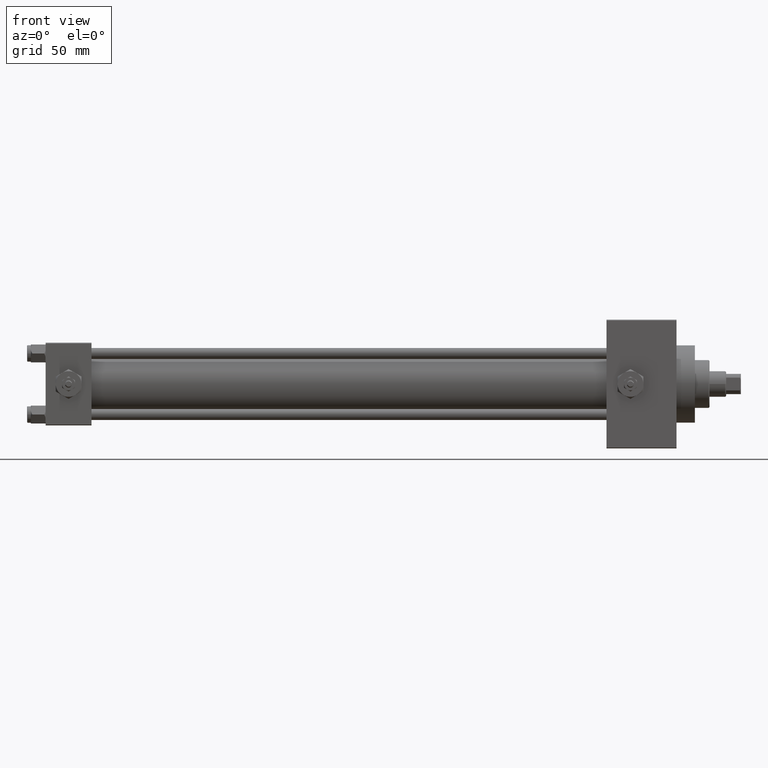
[diagram: clean part render]
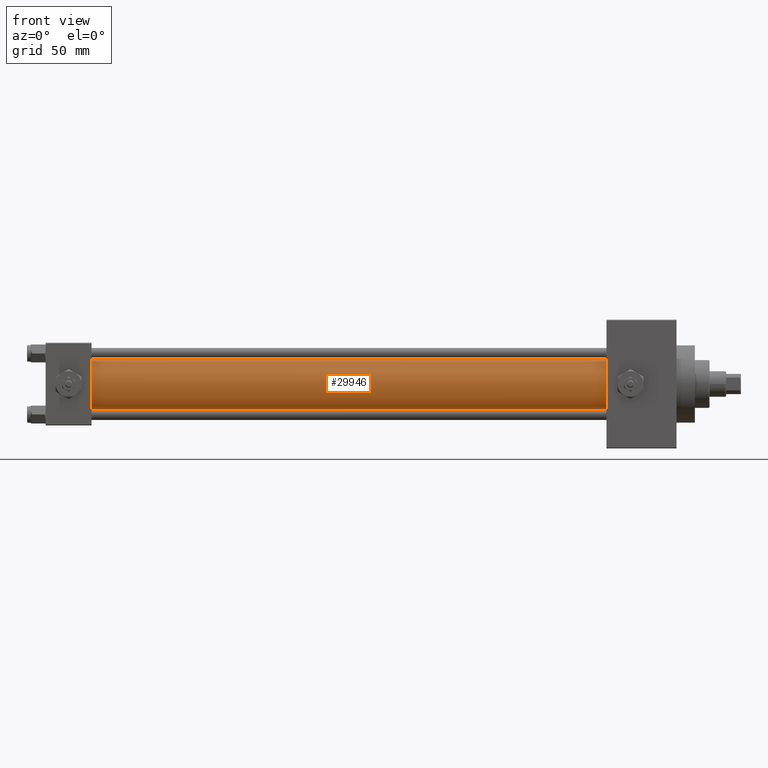
[diagram: same view with one face highlighted and labeled with its STEP entity id]
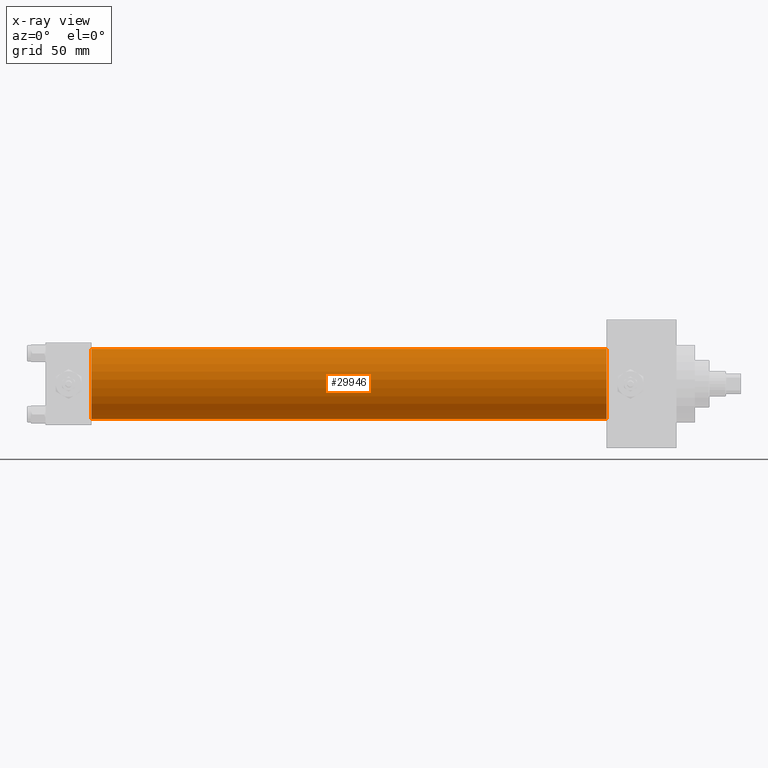
[diagram: x-ray of the same camera — body ghosted, the highlighted face saturated]
A machine part, front view. The second image highlights one B-rep face of the part: STEP entity #29946.
The next image is the same camera in x-ray: the body ghosted, the highlighted face saturated — about 0% of this face is hidden behind the body in this view.
In plain terms, the highlighted cylindrical surface (edge-blend (fillet) strip) has radius 19 mm, axis along (-1, -0, -0).
Its self-contained STEP definition (entity closure, byte-faithful):
#4764 = CARTESIAN_POINT ( 'NONE',  ( 305.0000000000000568, -2.602085213965210642E-15, 19.00000000000000000 ) ) ;
#5509 = VERTEX_POINT ( 'NONE', #35450 ) ;
#6197 = ORIENTED_EDGE ( 'NONE', *, *, #16673, .T. ) ;
#12384 = EDGE_CURVE ( 'NONE', #5509, #27821, #44966, .T. ) ;
#12551 = DIRECTION ( 'NONE',  ( -1.000000000000000000, -0.000000000000000000, -0.000000000000000000 ) ) ;
#12676 = CARTESIAN_POINT ( 'NONE',  ( 305.0000000000000568, -2.752562955852396712E-16, -19.00000000000000000 ) ) ;
#12865 = ORIENTED_EDGE ( 'NONE', *, *, #39129, .T. ) ;
#14685 = DIRECTION ( 'NONE',  ( 0.000000000000000000, 0.000000000000000000, 1.000000000000000000 ) ) ;
#16673 = EDGE_CURVE ( 'NONE', #28945, #27062, #26922, .T. ) ;
#17181 = DIRECTION ( 'NONE',  ( -1.000000000000000000, -0.000000000000000000, -0.000000000000000000 ) ) ;
#17927 = DIRECTION ( 'NONE',  ( 1.000000000000000000, -0.000000000000000000, 0.000000000000000000 ) ) ;
#18587 = EDGE_CURVE ( 'NONE', #27821, #27062, #41250, .T. ) ;
#18963 = ORIENTED_EDGE ( 'NONE', *, *, #18587, .F. ) ;
#20167 = CARTESIAN_POINT ( 'NONE',  ( 305.0000000000000568, -2.602085213965210642E-15, 0.000000000000000000 ) ) ;
#20924 = CYLINDRICAL_SURFACE ( 'NONE', #28034, 19.00000000000000000 ) ;
#21180 = AXIS2_PLACEMENT_3D ( 'NONE', #20167, #43338, #27629 ) ;
#21218 = EDGE_LOOP ( 'NONE', ( #18963, #38996, #12865, #6197 ) ) ;
#22304 = CARTESIAN_POINT ( 'NONE',  ( 305.0000000000000568, -2.752562955852396712E-16, -19.00000000000000000 ) ) ;
#23694 = DIRECTION ( 'NONE',  ( -1.000000000000000000, -0.000000000000000000, -0.000000000000000000 ) ) ;
#26922 = CIRCLE ( 'NONE', #31704, 19.00000000000000000 ) ;
#27062 = VERTEX_POINT ( 'NONE', #29028 ) ;
#27629 = DIRECTION ( 'NONE',  ( 0.000000000000000000, 0.000000000000000000, -1.000000000000000000 ) ) ;
#27821 = VERTEX_POINT ( 'NONE', #12676 ) ;
#28034 = AXIS2_PLACEMENT_3D ( 'NONE', #42884, #17181, #35879 ) ;
#28945 = VERTEX_POINT ( 'NONE', #46060 ) ;
#29028 = CARTESIAN_POINT ( 'NONE',  ( 25.00000000000002132, -2.752562955852396712E-16, -19.00000000000000000 ) ) ;
#29946 = ADVANCED_FACE ( 'NONE', ( #46879 ), #20924, .T. ) ;
#30631 = VECTOR ( 'NONE', #23694, 1000.000000000000000 ) ;
#31704 = AXIS2_PLACEMENT_3D ( 'NONE', #43368, #17927, #14685 ) ;
#35450 = CARTESIAN_POINT ( 'NONE',  ( 305.0000000000000568, -2.602085213965210642E-15, 19.00000000000000000 ) ) ;
#35879 = DIRECTION ( 'NONE',  ( 0.000000000000000000, 0.000000000000000000, 1.000000000000000000 ) ) ;
#38996 = ORIENTED_EDGE ( 'NONE', *, *, #12384, .F. ) ;
#39129 = EDGE_CURVE ( 'NONE', #5509, #28945, #42401, .T. ) ;
#41250 = LINE ( 'NONE', #22304, #49268 ) ;
#42401 = LINE ( 'NONE', #4764, #30631 ) ;
#42884 = CARTESIAN_POINT ( 'NONE',  ( 305.0000000000000568, -2.602085213965210642E-15, 0.000000000000000000 ) ) ;
#43338 = DIRECTION ( 'NONE',  ( 1.000000000000000000, 0.000000000000000000, 0.000000000000000000 ) ) ;
#43368 = CARTESIAN_POINT ( 'NONE',  ( 25.00000000000002132, -2.602085213965210642E-15, 0.000000000000000000 ) ) ;
#44966 = CIRCLE ( 'NONE', #21180, 19.00000000000000000 ) ;
#46060 = CARTESIAN_POINT ( 'NONE',  ( 25.00000000000002132, -2.602085213965210642E-15, 19.00000000000000000 ) ) ;
#46879 = FACE_OUTER_BOUND ( 'NONE', #21218, .T. ) ;
#49268 = VECTOR ( 'NONE', #12551, 1000.000000000000000 ) ;